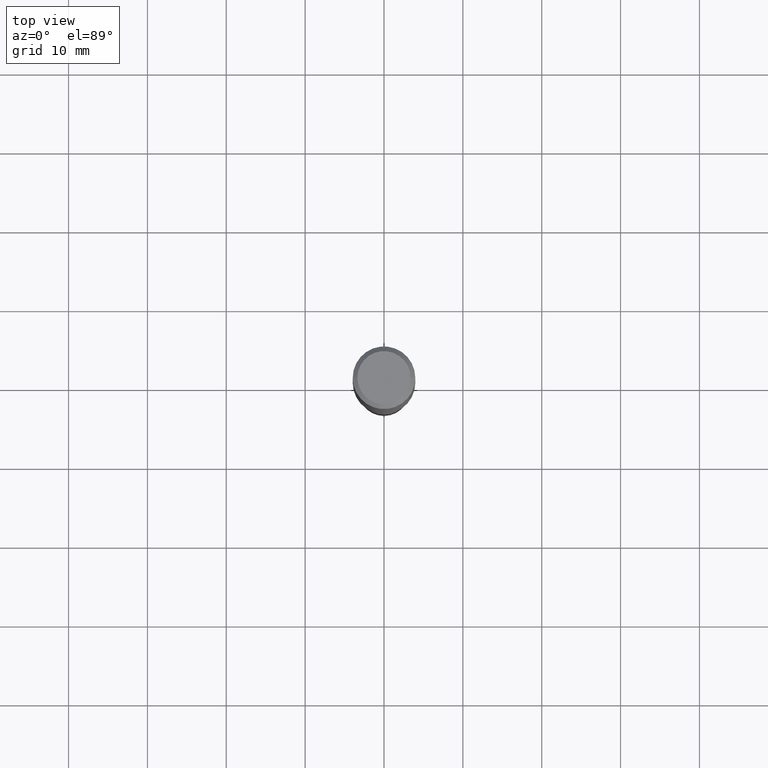
[diagram: clean part render]
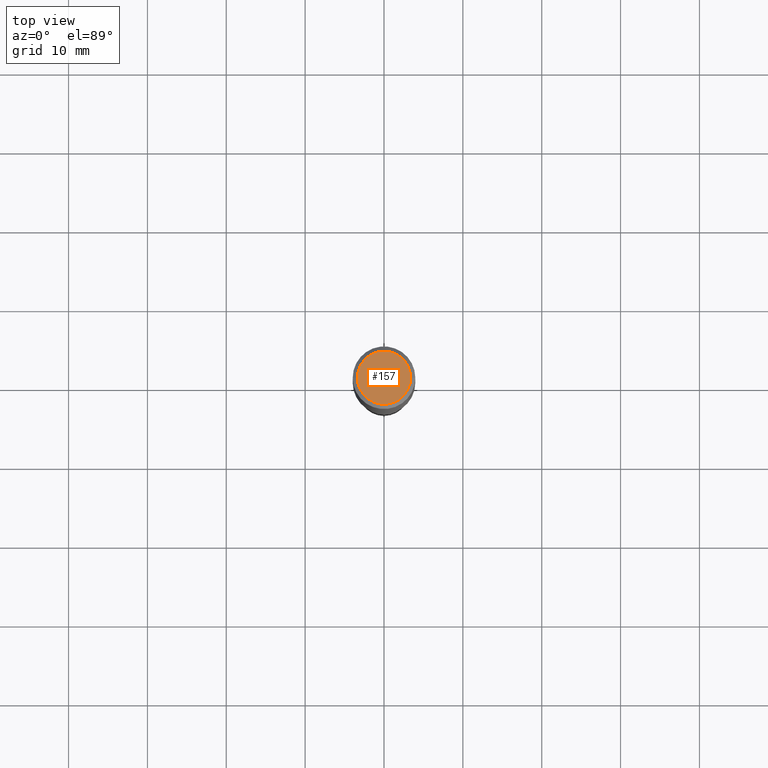
[diagram: same view with one face highlighted and labeled with its STEP entity id]
A machine part, top view. The second image highlights one B-rep face of the part: STEP entity #157.
In plain terms, the highlighted planar face has unit normal (0, -0, -1).
Its self-contained STEP definition (entity closure, byte-faithful):
#19 = ORIENTED_EDGE ( 'NONE', *, *, #239, .T. ) ;
#23 = FACE_OUTER_BOUND ( 'NONE', #282, .T. ) ;
#98 = DIRECTION ( 'NONE',  ( 2.438088387897960049E-29, -3.491481338843145188E-15, -1.000000000000000000 ) ) ;
#104 = CARTESIAN_POINT ( 'NONE',  ( -7.955031918821654702E-47, 1.135767727816384474E-32, 3.252968060235159383E-18 ) ) ;
#129 = VERTEX_POINT ( 'NONE', #324 ) ;
#157 = ADVANCED_FACE ( 'NONE', ( #23 ), #171, .F. ) ;
#158 = AXIS2_PLACEMENT_3D ( 'NONE', #104, #376, #264 ) ;
#169 = EDGE_CURVE ( 'NONE', #332, #129, #326, .T. ) ;
#171 = PLANE ( 'NONE',  #259 ) ;
#176 = CARTESIAN_POINT ( 'NONE',  ( -7.955031918821654702E-47, 1.135767727816384474E-32, 3.252968060235159383E-18 ) ) ;
#239 = EDGE_CURVE ( 'NONE', #129, #332, #334, .T. ) ;
#246 = AXIS2_PLACEMENT_3D ( 'NONE', #176, #419, #341 ) ;
#250 = DIRECTION ( 'NONE',  ( -1.000000000000000000, 6.982962677686265922E-15, -4.876176775795935793E-29 ) ) ;
#259 = AXIS2_PLACEMENT_3D ( 'NONE', #481, #98, #250 ) ;
#264 = DIRECTION ( 'NONE',  ( 1.000000000000000000, -6.982962677686268288E-15, 4.876286914311434227E-29 ) ) ;
#282 = EDGE_LOOP ( 'NONE', ( #393, #19 ) ) ;
#324 = CARTESIAN_POINT ( 'NONE',  ( 0.1328125000000000000, -1.032472148179985084E-15, 3.252968060242011842E-18 ) ) ;
#326 = CIRCLE ( 'NONE', #158, 0.1328125000000000000 ) ;
#332 = VERTEX_POINT ( 'NONE', #424 ) ;
#334 = CIRCLE ( 'NONE', #246, 0.1328125000000000000 ) ;
#341 = DIRECTION ( 'NONE',  ( 1.000000000000000000, -6.982962677686268288E-15, 4.876286914311434227E-29 ) ) ;
#376 = DIRECTION ( 'NONE',  ( -2.445468806185136597E-29, 3.491481338843145583E-15, 1.000000000000000000 ) ) ;
#393 = ORIENTED_EDGE ( 'NONE', *, *, #169, .T. ) ;
#419 = DIRECTION ( 'NONE',  ( -2.445468806185136597E-29, 3.491481338843145583E-15, 1.000000000000000000 ) ) ;
#424 = CARTESIAN_POINT ( 'NONE',  ( -0.1328125000000000000, 9.683405275697749214E-16, 3.252968060228530332E-18 ) ) ;
#481 = CARTESIAN_POINT ( 'NONE',  ( -3.977515959410827351E-47, 5.678838639081922371E-33, 1.626484030117579692E-18 ) ) ;